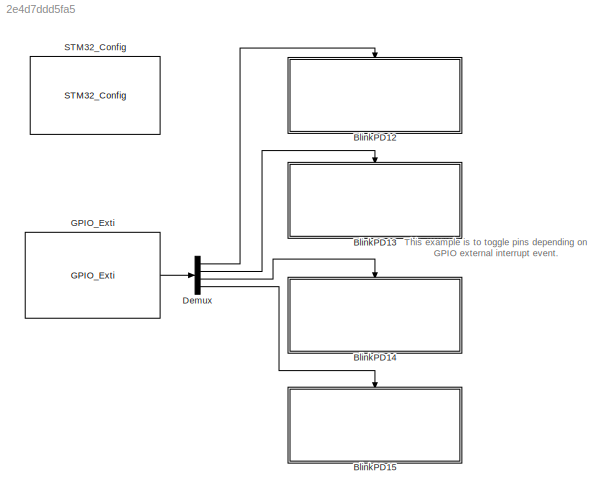
MODEL slx_2e4d7ddd5fa5
KIND model
CONFIG AbsTol = auto
CONFIG EnableMultiTasking = on
CONFIG FixedStep = 0.5
CONFIG MaxStep = auto
CONFIG MinStep = auto
CONFIG RelTol = 1e-3
CONFIG SampleTimeConstraint = Unconstrained
CONFIG Solver = FixedStepDiscrete
CONFIG SolverName = FixedStepDiscrete
CONFIG StartTime = 0.0
CONFIG StopTime = 10.0
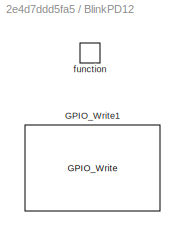
BLOCK [SubSystem] BlinkPD12
  Ports = [0, 0, 0, 1]
  RequestExecContextInheritance = off
  TreatAsAtomicUnit = on
BLOCK [Reference] BlinkPD12/GPIO_Write1  REF=GPIO_Lib/GPIO_Write
  Ports = []
  SourceBlock = GPIO_Lib/GPIO_Write
  SourceProductName = Target Support Package - STM32 Adapter
  SourceType = GPIO_Write
BLOCK [TriggerPort] BlinkPD12/function
  Ports = []
  StatesWhenEnabling = held
  TriggerType = function-call
  VariantControl = Variant
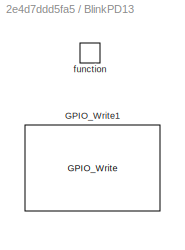
BLOCK [SubSystem] BlinkPD13
  Ports = [0, 0, 0, 1]
  RequestExecContextInheritance = off
  TreatAsAtomicUnit = on
BLOCK [Reference] BlinkPD13/GPIO_Write1  REF=GPIO_Lib/GPIO_Write
  Ports = []
  SourceBlock = GPIO_Lib/GPIO_Write
  SourceProductName = Target Support Package - STM32 Adapter
  SourceType = GPIO_Write
BLOCK [TriggerPort] BlinkPD13/function
  Ports = []
  StatesWhenEnabling = held
  TriggerType = function-call
  VariantControl = Variant
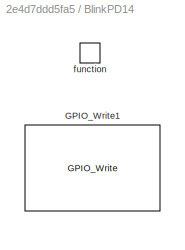
BLOCK [SubSystem] BlinkPD14
  Ports = [0, 0, 0, 1]
  RequestExecContextInheritance = off
  TreatAsAtomicUnit = on
BLOCK [Reference] BlinkPD14/GPIO_Write1  REF=GPIO_Lib/GPIO_Write
  Ports = []
  SourceBlock = GPIO_Lib/GPIO_Write
  SourceProductName = Target Support Package - STM32 Adapter
  SourceType = GPIO_Write
BLOCK [TriggerPort] BlinkPD14/function
  Ports = []
  StatesWhenEnabling = held
  TriggerType = function-call
  VariantControl = Variant
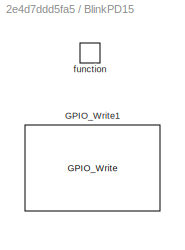
BLOCK [SubSystem] BlinkPD15
  Ports = [0, 0, 0, 1]
  RequestExecContextInheritance = off
  TreatAsAtomicUnit = on
BLOCK [Reference] BlinkPD15/GPIO_Write1  REF=GPIO_Lib/GPIO_Write
  Ports = []
  SourceBlock = GPIO_Lib/GPIO_Write
  SourceProductName = Target Support Package - STM32 Adapter
  SourceType = GPIO_Write
BLOCK [TriggerPort] BlinkPD15/function
  Ports = []
  StatesWhenEnabling = held
  TriggerType = function-call
  VariantControl = Variant
BLOCK [Demux] Demux
  DisplayOption = bar
  Ports = [1, 4]
BLOCK [Reference] GPIO_Exti  REF=GPIO_Lib/GPIO_Exti
  Ports = [0, 1]
  SourceBlock = GPIO_Lib/GPIO_Exti
  SourceProductName = Target Support Package - STM32 Adapter
  SourceType = GPIO_Exti
BLOCK [Reference] STM32_Config  REF=STM32_Config_Lib/STM32_Config
  Ports = []
  SourceBlock = STM32_Config_Lib/STM32_Config
  SourceProductName = Target Support Package - STM32 Adapter
  SourceType = STM32_Config
ANNOTATION (root): This example is to toggle pins depending on GPIO external interrupt event.
LINE Demux:1 -> BlinkPD12:trigger
LINE Demux:2 -> BlinkPD13:trigger
LINE Demux:3 -> BlinkPD14:trigger
LINE Demux:4 -> BlinkPD15:trigger
LINE GPIO_Exti:1 -> Demux:1
